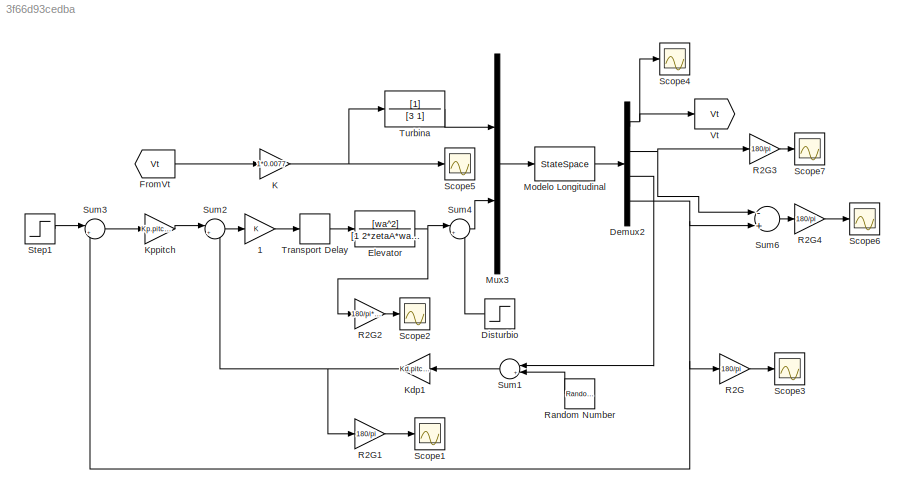
MODEL slx_3f66d93cedba
KIND model
BLOCK [Gain] 1
  OutDataTypeStr = Inherit: Inherit via internal rule
  ParamDataTypeStr = Inherit: Inherit via internal rule
  SaturateOnIntegerOverflow = off
BLOCK [Demux] Demux2
  DisplayOption = bar
  Ports = [1, 4]
BLOCK [Step] Disturbio
  After = pi/180*0
  SampleTime = 0
BLOCK [TransferFcn] Elevator
  Denominator = [1 2*zetaA*wa wa^2]
  Numerator = [wa^2]
BLOCK [From] FromVt
  GotoTag = Vt
BLOCK [Gain] K
  Gain = 1*0.0077
  OutDataTypeStr = Inherit: Inherit via internal rule
  ParamDataTypeStr = Inherit: Inherit via internal rule
  SaturateOnIntegerOverflow = off
BLOCK [Gain] Kdp1
  Gain = Kd.pitch(Alt,Vel)
  OutDataTypeStr = Inherit: Inherit via internal rule
  ParamDataTypeStr = Inherit: Inherit via internal rule
  SaturateOnIntegerOverflow = off
BLOCK [Gain] Kppitch
  Gain = Kp.pitch(Alt,Vel)
  OutDataTypeStr = Inherit: Inherit via internal rule
  ParamDataTypeStr = Inherit: Inherit via internal rule
  SaturateOnIntegerOverflow = off
BLOCK [StateSpace] Modelo Longitudinal
  A = Plano_Long(Alt,Vel).A(1:4,1:4)
  B = Plano_Long(Alt,Vel).B(1:4,:)
  C = eye(4)
  D = zeros(4,2)
  Ports = [1, 1]
  X0 = [0 0 0 0]'
BLOCK [Mux] Mux3
  DisplayOption = bar
  Inputs = 2
  Ports = [2, 1]
BLOCK [Gain] R2G
  Gain = 180/pi
  OutDataTypeStr = Inherit: Inherit via internal rule
  ParamDataTypeStr = Inherit: Inherit via internal rule
  SaturateOnIntegerOverflow = off
BLOCK [Gain] R2G1
  Gain = 180/pi
  OutDataTypeStr = Inherit: Inherit via internal rule
  ParamDataTypeStr = Inherit: Inherit via internal rule
  SaturateOnIntegerOverflow = off
BLOCK [Gain] R2G2
  Gain = 180/pi*0.1
  OutDataTypeStr = Inherit: Inherit via internal rule
  ParamDataTypeStr = Inherit: Inherit via internal rule
  SaturateOnIntegerOverflow = off
BLOCK [Gain] R2G3
  Gain = 180/pi
  OutDataTypeStr = Inherit: Inherit via internal rule
  ParamDataTypeStr = Inherit: Inherit via internal rule
  SaturateOnIntegerOverflow = off
BLOCK [Gain] R2G4
  Gain = 180/pi
  OutDataTypeStr = Inherit: Inherit via internal rule
  ParamDataTypeStr = Inherit: Inherit via internal rule
  SaturateOnIntegerOverflow = off
BLOCK [RandomNumber] Random Number
  SampleTime = 0.002
  Variance = (0.002)^2*0
BLOCK [Scope] Scope1
  DataFormat = StructureWithTime
  Floating = off
  NumInputPorts = 1
  Ports = [1]
  SampleTime = 0
  ShowLegends = off
  ZoomMode = yonly
BLOCK [Scope] Scope2
  DataFormat = StructureWithTime
  Floating = off
  LimitDataPoints = off
  NumInputPorts = 1
  Ports = [1]
  SampleTime = 0
  SaveName = ScopeData1
  ShowLegends = off
  ZoomMode = xonly
BLOCK [Scope] Scope3
  DataFormat = StructureWithTime
  Floating = off
  LimitDataPoints = off
  NumInputPorts = 1
  Ports = [1]
  SampleTime = 0
  SaveName = ScopeData3
  ShowLegends = off
  ZoomMode = yonly
BLOCK [Scope] Scope4
  DataFormat = StructureWithTime
  Floating = off
  LimitDataPoints = off
  NumInputPorts = 1
  Ports = [1]
  SampleTime = 0
  SaveName = ScopeData2
  ShowLegends = off
  ZoomMode = yonly
BLOCK [Scope] Scope5
  DataFormat = StructureWithTime
  Floating = off
  LimitDataPoints = off
  NumInputPorts = 1
  Ports = [1]
  SampleTime = 0
  SaveName = ScopeData4
  ShowLegends = off
  ZoomMode = xonly
BLOCK [Scope] Scope6
  DataFormat = StructureWithTime
  Floating = off
  LimitDataPoints = off
  NumInputPorts = 1
  Ports = [1]
  SampleTime = 0
  SaveName = ScopeData5
  ShowLegends = off
  ZoomMode = yonly
BLOCK [Scope] Scope7
  DataFormat = StructureWithTime
  Floating = off
  LimitDataPoints = off
  NumInputPorts = 1
  Ports = [1]
  SampleTime = 0
  SaveName = ScopeData6
  ShowLegends = off
  ZoomMode = yonly
BLOCK [Step] Step1
  After = 1*pi/180
  SampleTime = 0
  Time = 0
BLOCK [Sum] Sum1
  IconShape = round
  InputSameDT = off
  Inputs = |++
  OutDataTypeStr = Inherit: Inherit via internal rule
  Ports = [2, 1]
  SaturateOnIntegerOverflow = off
BLOCK [Sum] Sum2
  IconShape = round
  InputSameDT = off
  Inputs = |+-
  OutDataTypeStr = Inherit: Inherit via internal rule
  Ports = [2, 1]
  SaturateOnIntegerOverflow = off
BLOCK [Sum] Sum3
  IconShape = round
  InputSameDT = off
  Inputs = |+-
  OutDataTypeStr = Inherit: Inherit via internal rule
  Ports = [2, 1]
  SaturateOnIntegerOverflow = off
BLOCK [Sum] Sum4
  IconShape = round
  InputSameDT = off
  Inputs = |++
  OutDataTypeStr = Inherit: Inherit via internal rule
  Ports = [2, 1]
  SaturateOnIntegerOverflow = off
BLOCK [Sum] Sum6
  InputSameDT = off
  Inputs = -+
  OutDataTypeStr = Inherit: Inherit via internal rule
  Ports = [2, 1]
  SaturateOnIntegerOverflow = off
BLOCK [TransportDelay] Transport Delay
  DelayTime = 0.01
  PadeOrder = 2
  Ports = [1, 1]
BLOCK [TransferFcn] Turbina
  Denominator = [3 1]
BLOCK [Goto] Vt
  GotoTag = Vt
LINE 1:1 -> Transport Delay:1
NET Demux2:1 -> Scope4:1, Vt:1
NET Demux2:2 -> R2G3:1, Sum6:1
LINE Demux2:3 -> Sum1:1
NET Demux2:4 -> R2G:1, Sum3:2, Sum6:2
LINE Disturbio:1 -> Sum4:2
NET Elevator:1 -> R2G2:1, Sum4:1
LINE FromVt:1 -> K:1
NET K:1 -> Scope5:1, Turbina:1
NET Kdp1:1 -> R2G1:1, Sum2:2
LINE Kppitch:1 -> Sum2:1
LINE Modelo Longitudinal:1 -> Demux2:1
LINE Mux3:1 -> Modelo Longitudinal:1
LINE R2G1:1 -> Scope1:1
LINE R2G2:1 -> Scope2:1
LINE R2G3:1 -> Scope7:1
LINE R2G4:1 -> Scope6:1
LINE R2G:1 -> Scope3:1
LINE Random Number:1 -> Sum1:2
LINE Step1:1 -> Sum3:1
LINE Sum1:1 -> Kdp1:1
LINE Sum2:1 -> 1:1
LINE Sum3:1 -> Kppitch:1
LINE Sum4:1 -> Mux3:2
LINE Sum6:1 -> R2G4:1
LINE Transport Delay:1 -> Elevator:1
LINE Turbina:1 -> Mux3:1
note: NET lines group one-source signal fan-out (src -> all destinations, sorted); 1:1 wires keep LINE
